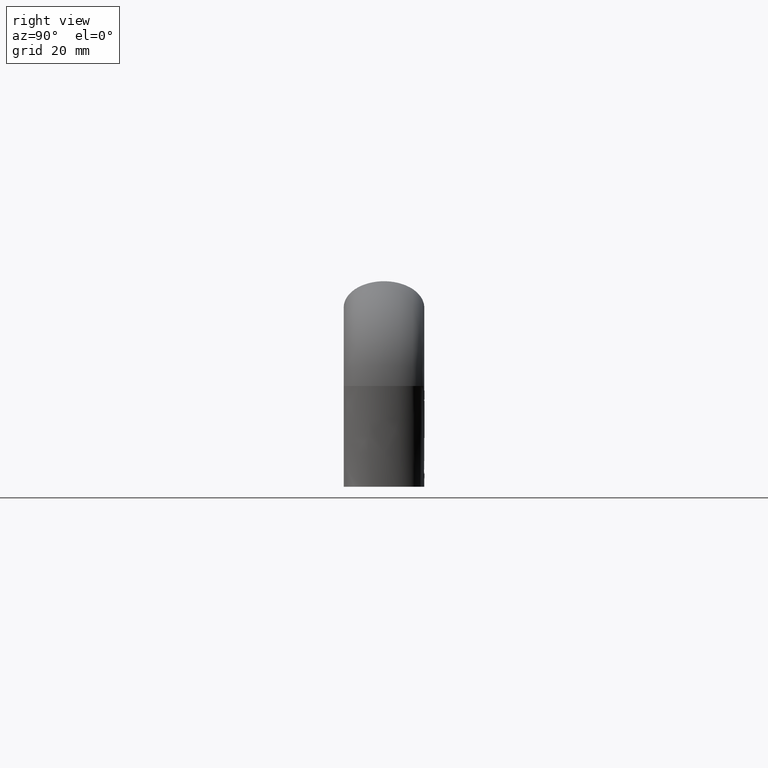
[diagram: clean part render]
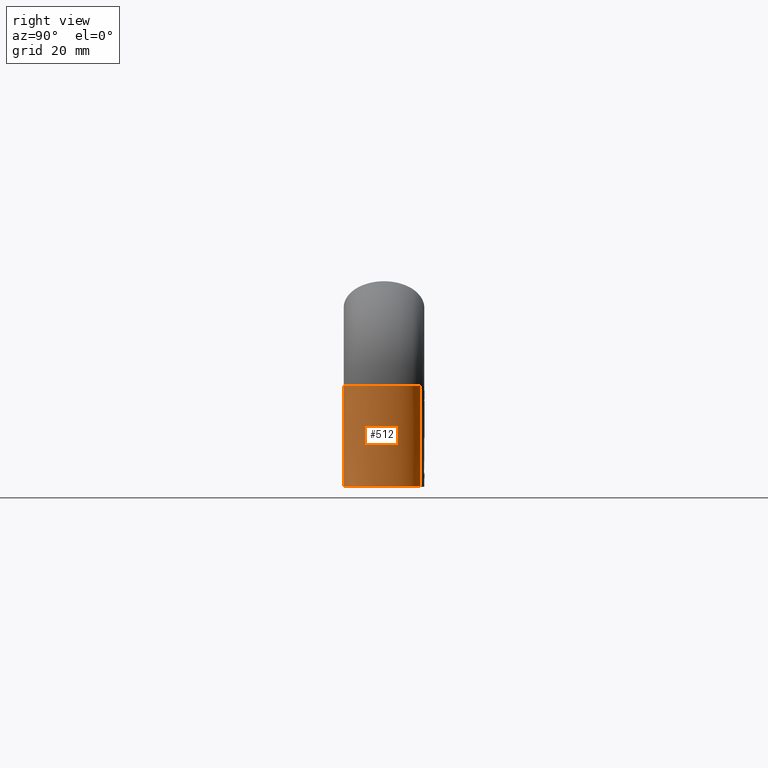
[diagram: same view with one face highlighted and labeled with its STEP entity id]
A machine part, right view. The second image highlights one B-rep face of the part: STEP entity #512.
In plain terms, the highlighted face is a freeform B-spline surface patch.
Its self-contained STEP definition (entity closure, byte-faithful):
#416=CARTESIAN_POINT('',(162.765148685384990,9.039503756879462,25.0));
#417=CARTESIAN_POINT('',(163.442849477727800,8.550381046790173,25.0));
#418=CARTESIAN_POINT('',(164.066757527582100,7.885596350527845,25.0));
#419=CARTESIAN_POINT('',(165.799481873463490,5.219866587632820,25.0));
#420=CARTESIAN_POINT('',(166.500007000000010,2.617993877991495,25.0));
#421=CARTESIAN_POINT('',(166.500007000000010,-2.617993877991495,25.0));
#422=CARTESIAN_POINT('',(165.799481873463490,-5.219866587632820,25.0));
#423=CARTESIAN_POINT('',(163.392920281961490,-8.922269036098131,25.0));
#424=CARTESIAN_POINT('',(161.701703020694510,-10.0,25.0));
#425=CARTESIAN_POINT('',(160.000007000000010,-10.0,25.0));
#426=CARTESIAN_POINT('',(162.765262463272790,9.039503756879462,16.666666670234068));
#427=CARTESIAN_POINT('',(163.442964903279600,8.550381046790173,16.666666670336362));
#428=CARTESIAN_POINT('',(164.066874394269800,7.885596350527845,16.666666670427968));
#429=CARTESIAN_POINT('',(165.799602541611510,5.219866587632820,16.666666670674999));
#430=CARTESIAN_POINT('',(166.500129100151010,2.617993877991495,16.666666670770699));
#431=CARTESIAN_POINT('',(166.500129100151010,-2.617993877991495,16.666666670770699));
#432=CARTESIAN_POINT('',(165.799602541611510,-5.219866587632820,16.666666670674999));
#433=CARTESIAN_POINT('',(163.393035670303500,-8.922269036098131,16.666666670331900));
#434=CARTESIAN_POINT('',(161.701814325030000,-10.0,16.666666670077049));
#435=CARTESIAN_POINT('',(160.000113633782490,-10.0,16.666666669802851));
#436=CARTESIAN_POINT('',(162.765148685384990,9.039503756879462,8.333333330653948));
#437=CARTESIAN_POINT('',(163.442849477727800,8.550381046790173,8.333333330577123));
#438=CARTESIAN_POINT('',(164.066757527582100,7.885596350527845,8.333333330508321));
#439=CARTESIAN_POINT('',(165.799481873463490,5.219866587632820,8.333333330322800));
#440=CARTESIAN_POINT('',(166.500007000000010,2.617993877991495,8.333333330250929));
#441=CARTESIAN_POINT('',(166.500007000000010,-2.617993877991495,8.333333330250929));
#442=CARTESIAN_POINT('',(165.799481873463490,-5.219866587632820,8.333333330322800));
#443=CARTESIAN_POINT('',(163.392920281961490,-8.922269036098131,8.333333330580469));
#444=CARTESIAN_POINT('',(161.701703020694510,-10.0,8.333333330771881));
#445=CARTESIAN_POINT('',(160.000007000000010,-10.0,8.333333330977830));
#446=CARTESIAN_POINT('',(162.765148685384990,9.039503756879462,-4.919750E-016));
#447=CARTESIAN_POINT('',(163.442849477727800,8.550381046790173,-6.125518E-016));
#448=CARTESIAN_POINT('',(164.066757527582100,7.885596350527845,-7.235577E-016));
#449=CARTESIAN_POINT('',(165.799481873463490,5.219866587632820,-1.031845E-015));
#450=CARTESIAN_POINT('',(166.500007000000010,2.617993877991495,-1.156482E-015));
#451=CARTESIAN_POINT('',(166.500007000000010,-2.617993877991495,-1.156482E-015));
#452=CARTESIAN_POINT('',(165.799481873463490,-5.219866587632820,-1.031845E-015));
#453=CARTESIAN_POINT('',(163.392920281961490,-8.922269036098131,-6.036683E-016));
#454=CARTESIAN_POINT('',(161.701703020694510,-10.0,-3.027664E-016));
#455=CARTESIAN_POINT('',(160.000007000000010,-10.0,9.003722E-030));
#456=B_SPLINE_SURFACE_WITH_KNOTS('',3,3,((#416,#426,#436,#446),(#417,#427,#437,#447),(#418,#428,#438,#448),(#419,#429,#439,#449),(#420,#430,#440,#450),(#421,#431,#441,#451),(#422,#432,#442,#452),(#423,#433,#443,#453),(#424,#434,#444,#454),(#425,#435,#445,#455)),.UNSPECIFIED.,.F.,.F.,.U.,(4,2,2,2,4),(4,4),(0.0,3.385193623606253,11.078815495438640,18.772437367271021,26.466059239103409),(0.0,25.000000004368761),.UNSPECIFIED.);
#457=CARTESIAN_POINT('',(162.765148685947910,9.039503756473197,25.0));
#458=VERTEX_POINT('',#457);
#459=CARTESIAN_POINT('',(160.000007000000010,-10.0,25.0));
#460=VERTEX_POINT('',#459);
#461=CARTESIAN_POINT('',(162.765148685947910,9.039503756473197,25.0));
#462=CARTESIAN_POINT('',(163.442849478418710,8.550381046053946,25.0));
#463=CARTESIAN_POINT('',(164.066757527875210,7.885596350076813,25.0));
#464=CARTESIAN_POINT('',(165.799481873463490,5.219866587632820,25.0));
#465=CARTESIAN_POINT('',(166.500007000000010,2.617993877991495,25.0));
#466=CARTESIAN_POINT('',(166.500007000000010,-2.617993877991495,25.0));
#467=CARTESIAN_POINT('',(165.799481873463490,-5.219866587632820,25.0));
#468=CARTESIAN_POINT('',(163.392920281961490,-8.922269036098131,25.0));
#469=CARTESIAN_POINT('',(161.701703020694510,-10.0,25.0));
#470=CARTESIAN_POINT('',(160.000007000000010,-10.0,25.0));
#471=B_SPLINE_CURVE_WITH_KNOTS('',3,(#461,#462,#463,#464,#465,#466,#467,#468,#469,#470),.UNSPECIFIED.,.F.,.U.,(4,2,2,2,4),(0.570000000030455,0.625000000000000,0.750000000000000,0.875000000000000,1.0),.UNSPECIFIED.);
#472=EDGE_CURVE('',#458,#460,#471,.T.);
#473=ORIENTED_EDGE('',*,*,#472,.T.);
#474=CARTESIAN_POINT('',(160.000007000000010,-10.0,2.244912E-030));
#475=VERTEX_POINT('',#474);
#476=CARTESIAN_POINT('',(160.000007000000010,-10.0,25.0));
#477=CARTESIAN_POINT('',(160.000113633782490,-10.0,16.666666669802851));
#478=CARTESIAN_POINT('',(160.000007000000010,-10.0,8.333333330977830));
#479=CARTESIAN_POINT('',(160.000007000000010,-10.0,9.022597E-030));
#480=B_SPLINE_CURVE_WITH_KNOTS('',3,(#476,#477,#478,#479),.UNSPECIFIED.,.F.,.U.,(4,4),(0.892362501071435,1.0),.UNSPECIFIED.);
#481=EDGE_CURVE('',#460,#475,#480,.T.);
#482=ORIENTED_EDGE('',*,*,#481,.T.);
#483=CARTESIAN_POINT('',(162.767738318758490,9.043088330871754,-2.464482E-016));
#484=VERTEX_POINT('',#483);
#485=CARTESIAN_POINT('',(162.767738318758490,9.043088330871754,-2.464482E-016));
#486=CARTESIAN_POINT('',(163.788920819888010,8.305512380227720,-4.355888E-016));
#487=CARTESIAN_POINT('',(164.593839128239210,7.067798397805817,-5.929763E-016));
#488=CARTESIAN_POINT('',(165.507972283766410,5.662145952517141,-7.717187E-016));
#489=CARTESIAN_POINT('',(166.003266680682090,3.824125052805150,-8.821813E-016));
#490=CARTESIAN_POINT('',(166.498187716440810,1.987489683827968,-9.925607E-016));
#491=CARTESIAN_POINT('',(166.498549664108910,-0.002017246560880,-1.017792E-015));
#492=CARTESIAN_POINT('',(166.498911338934790,-1.990024453444742,-1.043004E-015));
#493=CARTESIAN_POINT('',(166.004285734044290,-3.828133019280100,-9.791618E-016));
#494=CARTESIAN_POINT('',(165.510032986190790,-5.664855988197505,-9.153682E-016));
#495=CARTESIAN_POINT('',(164.595722093326910,-7.071730822781828,-7.721729E-016));
#496=CARTESIAN_POINT('',(163.682100423297500,-8.477545131598886,-6.290855E-016));
#497=CARTESIAN_POINT('',(162.487299787594910,-9.239002294770261,-4.283370E-016));
#498=CARTESIAN_POINT('',(161.293477871443090,-9.999835711192269,-2.277528E-016));
#499=CARTESIAN_POINT('',(160.000007000000010,-10.0,2.244912E-030));
#500=B_SPLINE_CURVE_WITH_KNOTS('',2,(#485,#486,#487,#488,#489,#490,#491,#492,#493,#494,#495,#496,#497,#498,#499),.UNSPECIFIED.,.F.,.U.,(3,2,2,2,2,2,2,3),(0.140017178753207,0.250000000000000,0.375000000000000,0.500000000000000,0.625000000000000,0.750000000000000,0.875000000000000,1.0),.UNSPECIFIED.);
#501=EDGE_CURVE('',#484,#475,#500,.T.);
#502=ORIENTED_EDGE('',*,*,#501,.F.);
#503=CARTESIAN_POINT('',(162.765148685947910,9.039503756473197,25.0));
#504=CARTESIAN_POINT('',(162.766125674772210,9.040698614605537,16.666666670234068));
#505=CARTESIAN_POINT('',(162.766875107821900,9.041893472739286,8.333333330653948));
#506=CARTESIAN_POINT('',(162.767738318758490,9.043088330871754,-2.464482E-016));
#507=B_SPLINE_CURVE_WITH_KNOTS('',3,(#503,#504,#505,#506),.UNSPECIFIED.,.F.,.U.,(4,4),(0.892362501071435,1.0),.UNSPECIFIED.);
#508=EDGE_CURVE('',#458,#484,#507,.T.);
#509=ORIENTED_EDGE('',*,*,#508,.F.);
#510=EDGE_LOOP('',(#473,#482,#502,#509));
#511=FACE_OUTER_BOUND('',#510,.T.);
#512=ADVANCED_FACE('',(#511),#456,.T.);